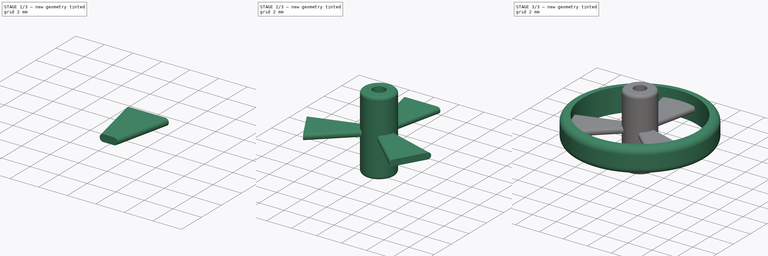
[diagram: build sequence overview — one tinted view per stage of 3, left to right]
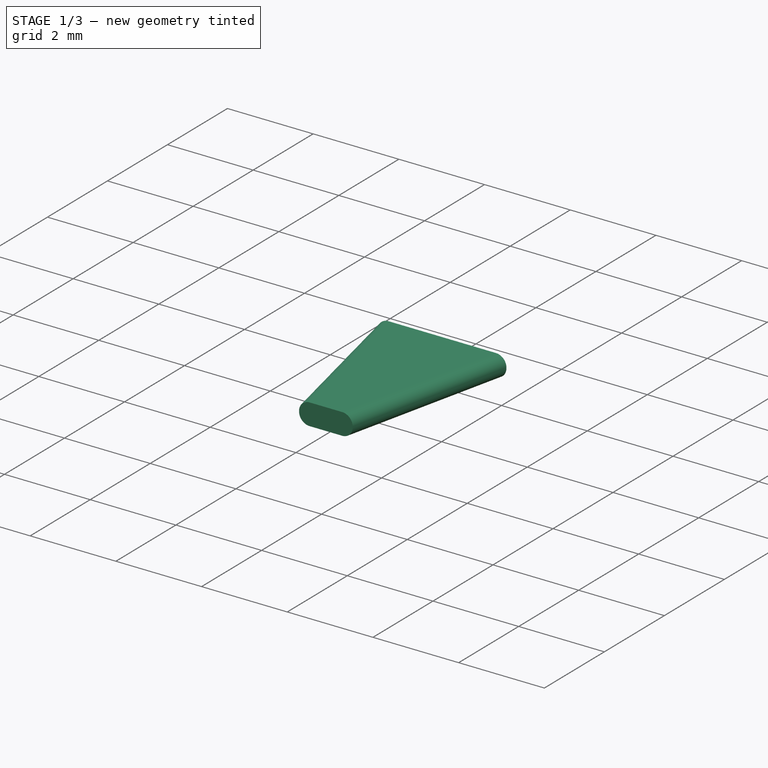
[diagram: stage 1 of 3 — iso view after this stage's code; geometry added in this stage tinted green]
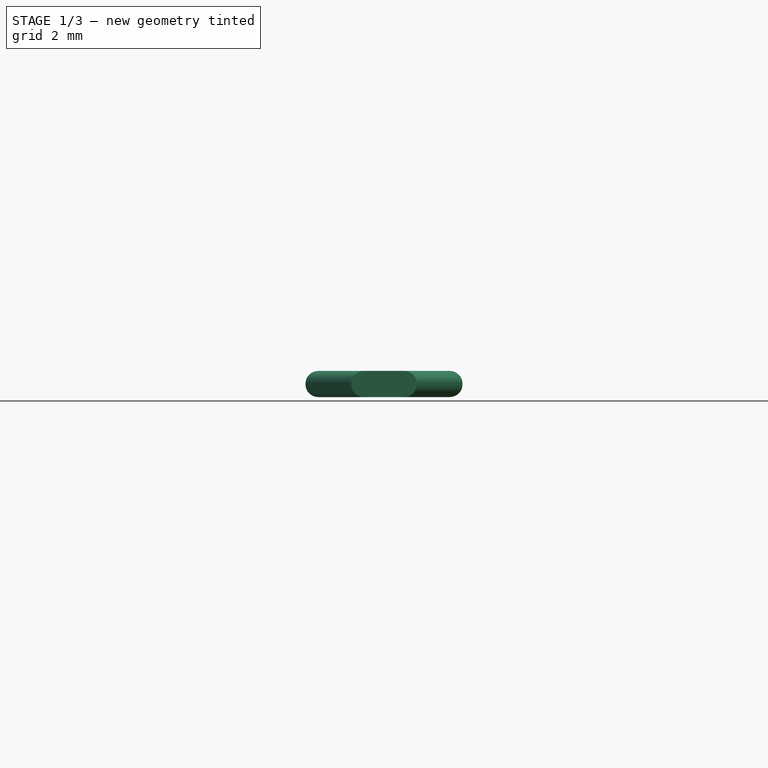
[diagram: stage 1 of 3 — front view after this stage's code; geometry added in this stage tinted green]
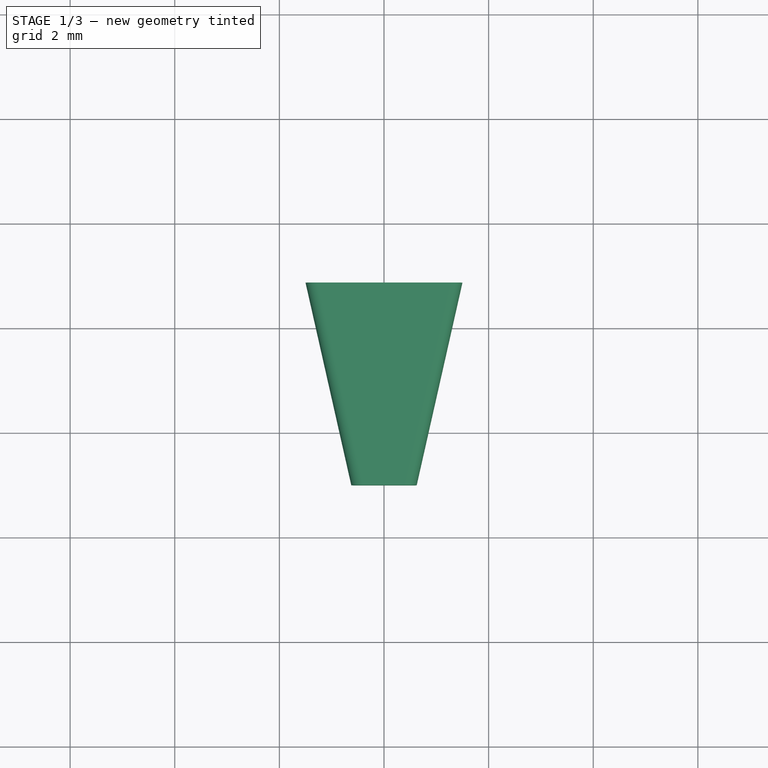
[diagram: stage 1 of 3 — top view after this stage's code; geometry added in this stage tinted green]
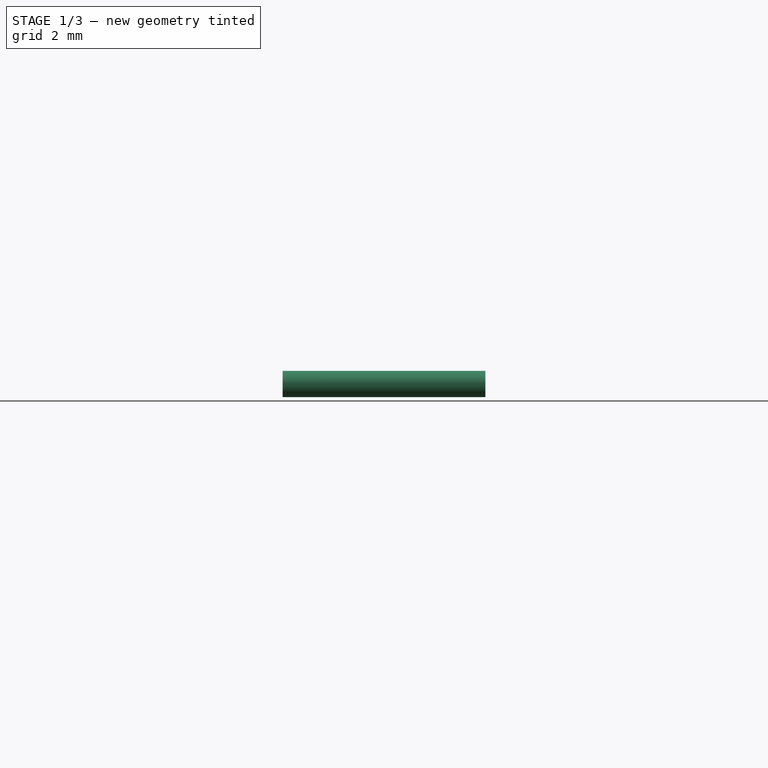
[diagram: stage 1 of 3 — right view after this stage's code; geometry added in this stage tinted green]
FCSTD DOCUMENT  (FreeCAD 0.19R24276 (Git))
Label: Wheel
License: All rights reserved
LicenseURL: http://en.wikipedia.org/wiki/All_rights_reserved
objects: Part::FeaturePython×3, Part::Fillet×2, Spreadsheet::Sheet×1, Sketcher::SketchObject×1, PartDesign::Pad×1, PartDesign::Fillet×1, PartDesign::Body×1
note: 10 computed .brp shape members not serialized (recipe doc carries the construction recipe); baked Part::Feature solids carry a one-line shape summary decoded from their .brp

FEATURE [Sketcher::SketchObject] Sketch
  FullyConstrained = true
  MapMode = 5
  Support = -> [XY_Plane]
  expr: Constraints[9] = (<<data>>.wheel_outter_radius - <<data>>.wheel_inner_radius) / 2 + <<data>>.wheel_inner_radius - 1.25mm
  expr: Constraints[7] = <<data>>.hub_outter_radius - 0.25mm
  sketch-geometry (4):
    g0: LineSegment StartX=1.5 StartY=4.875 StartZ=0 EndX=-1.5 EndY=4.875 EndZ=0
    g1: LineSegment StartX=-1.5 StartY=4.875 StartZ=0 EndX=-0.625 EndY=1 EndZ=0
    g2: LineSegment StartX=-0.625 StartY=1 StartZ=0 EndX=0.625 EndY=1 EndZ=0
    g3: LineSegment StartX=0.625 StartY=1 StartZ=0 EndX=1.5 EndY=4.875 EndZ=0
  constraints (10):
    c: Coincident(g0,g1)
    c: Coincident(g1,g2)
    c: Coincident(g2,g3)
    c: Coincident(g3,g0)
    c: Symmetric(g2,g1,g-2)
    c: DistanceX(g1,g2) = 1.25
    c: DistanceX(g0,g0) = 3
    c: DistanceY(g-1,g2) = 1
    c: Symmetric(g0,g0,g-2)
    c: DistanceY(g2,g0) = 3.875
FEATURE [PartDesign::Pad] Pad
  Direction = (1,1,1)
  Length = 0.5
  Length2 = 100
  Profile = -> Sketch
  Type = 0
  expr: Length = <<data>>.spoke_width
FEATURE [PartDesign::Fillet] Fillet002
  Base = -> Pad [Edge6,Edge7,Edge11,Edge12]
  BaseFeature = -> Pad
  Radius = 0.24
  SupportTransform = false
  expr: Radius = <<data>>.spoke_width / 2 - 0.01mm
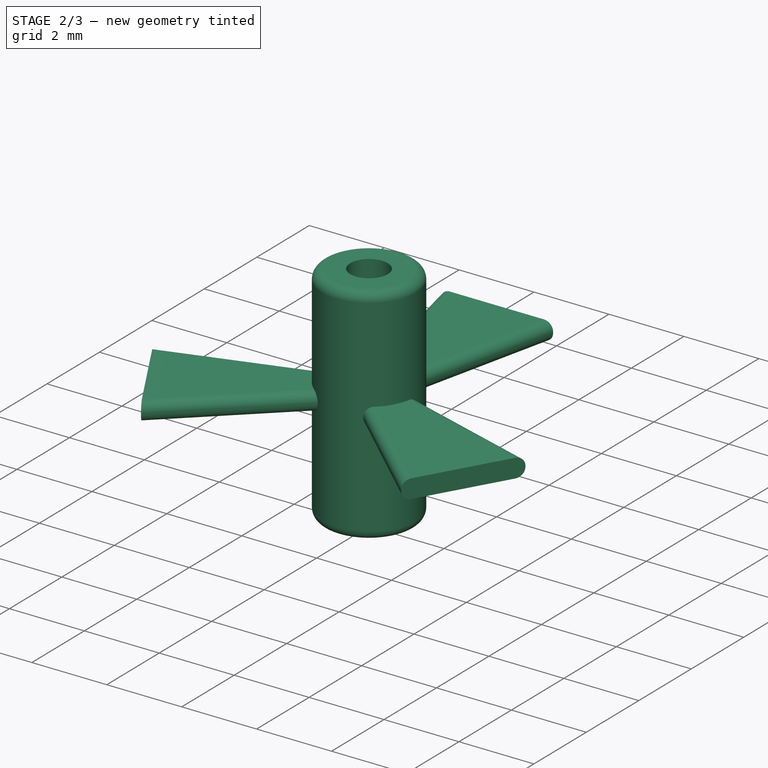
[diagram: stage 2 of 3 — iso view after this stage's code; geometry added in this stage tinted green]
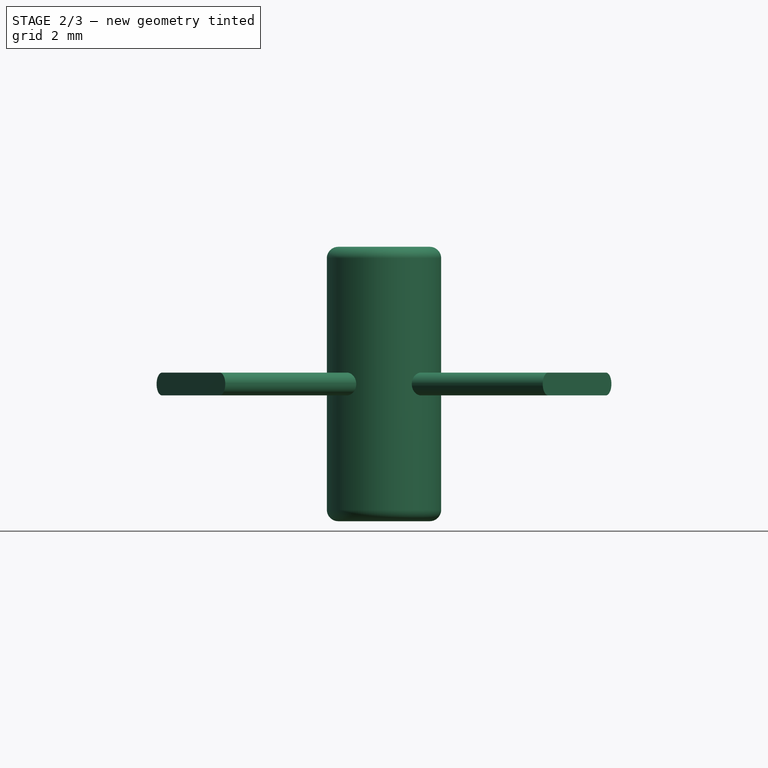
[diagram: stage 2 of 3 — front view after this stage's code; geometry added in this stage tinted green]
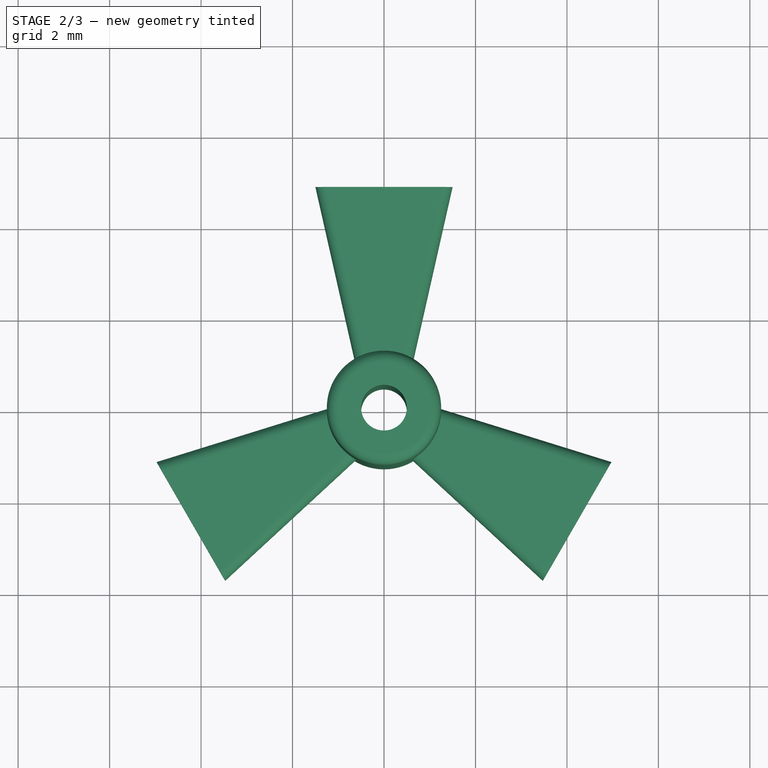
[diagram: stage 2 of 3 — top view after this stage's code; geometry added in this stage tinted green]
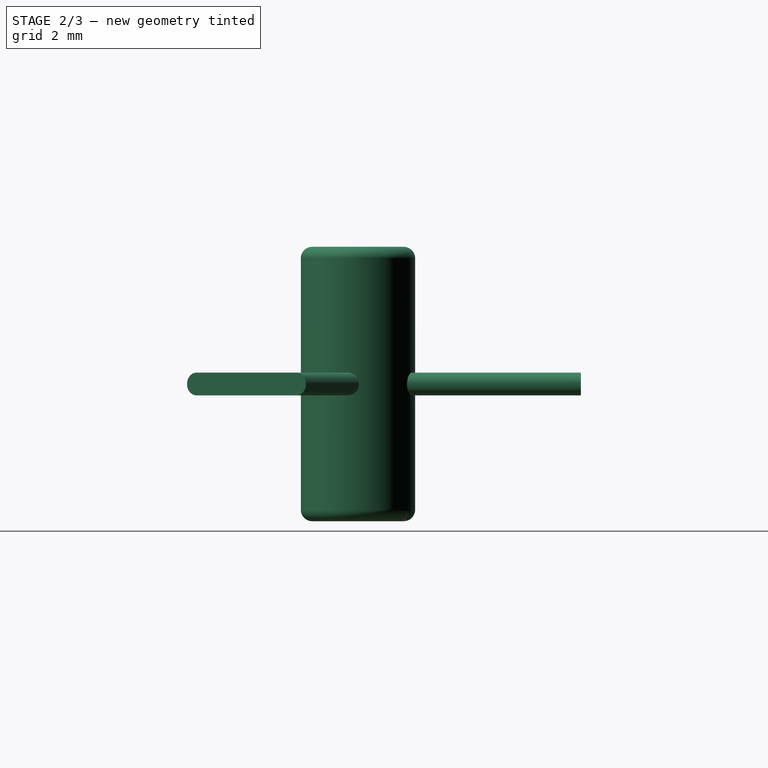
[diagram: stage 2 of 3 — right view after this stage's code; geometry added in this stage tinted green]
FEATURE [Part::FeaturePython] Tube  label="Hub"  # WARN: FeaturePython — macro-defined, semantics opaque (R4)
  AttacherType = Attacher::AttachEngine3D
  Height = 6
  InnerRadius = 0.5
  OuterRadius = 1.25
  expr: InnerRadius = <<data>>.axle_hole_radius
  expr: OuterRadius = <<data>>.hub_outter_radius
  expr: Height = <<data>>.hub_width
FEATURE [Part::Fillet] Fillet001
  Base = -> Tube
  Edges = 2 edges r=0.25: [Edge1,Edge3]
FEATURE [PartDesign::Body] Body
  Group = -> [Sketch,Pad,Fillet002]
  Origin = -> Origin
  Placement = pos=(0,0,2.75) rot=(0,0,1;0rad)
  Tip = -> Fillet002
FEATURE [Part::FeaturePython] Array  # Draft array (typed FeaturePython)
  Angle = 360
  ArrayType = 1
  Axis = (0,0,1)
  Base = -> Fillet002
  Center = (0,0,0)
  Count = 3
  ExpandArray = false
  Fuse = false
  IntervalAxis = (0,0,0)
  IntervalX = (50,0,0)
  IntervalY = (0,50,0)
  IntervalZ = (0,0,50)
  NumberCircles = 3
  NumberPolar = 3
  NumberX = 2
  NumberY = 2
  NumberZ = 1
  Placement = pos=(0,0,2.75) rot=(0,0,1;0rad)
  PlacementList = 3 placements: [(0,0,0),(0,0,0),(0,0,0)]
  RadialDistance = 50
  ScaleList = (3) [(1,1,1),(1,1,1),(1,1,1)]
  Symmetry = 1
  TangentialDistance = 25
  expr: .Placement.Base.z = <<data>>.hub_width / 2 - <<data>>.spoke_width / 2
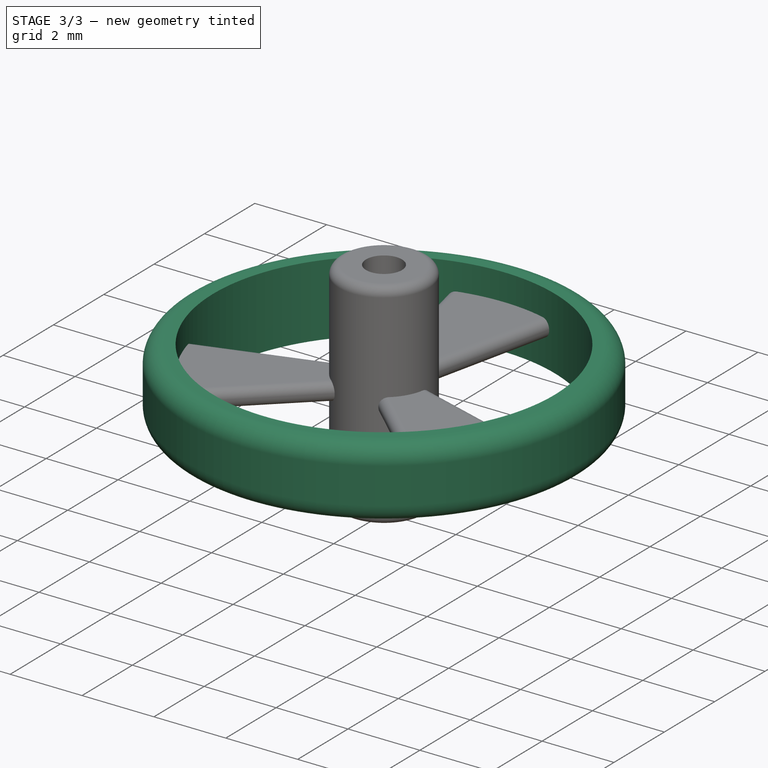
[diagram: stage 3 of 3 — iso view after this stage's code; geometry added in this stage tinted green]
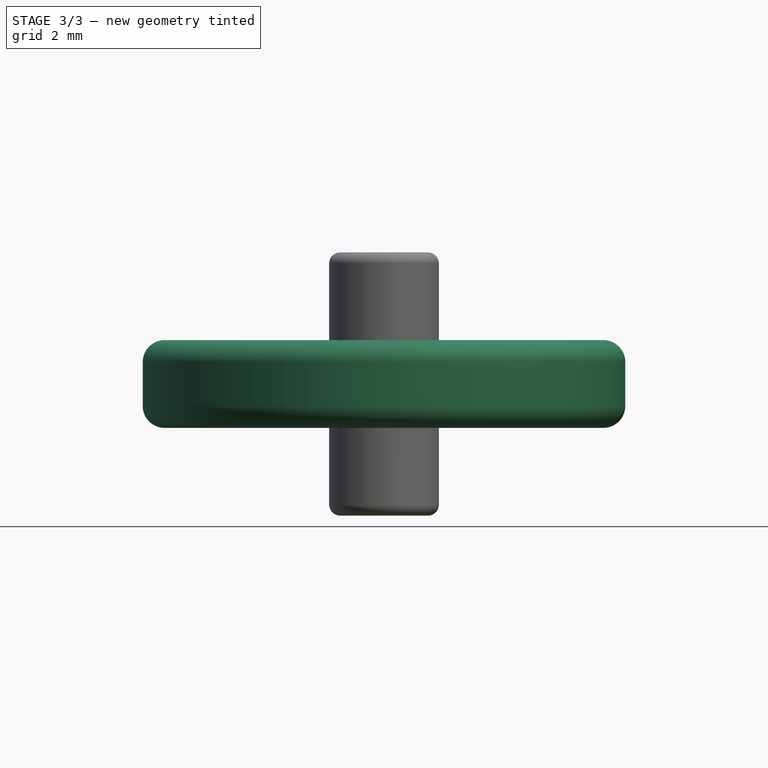
[diagram: stage 3 of 3 — front view after this stage's code; geometry added in this stage tinted green]
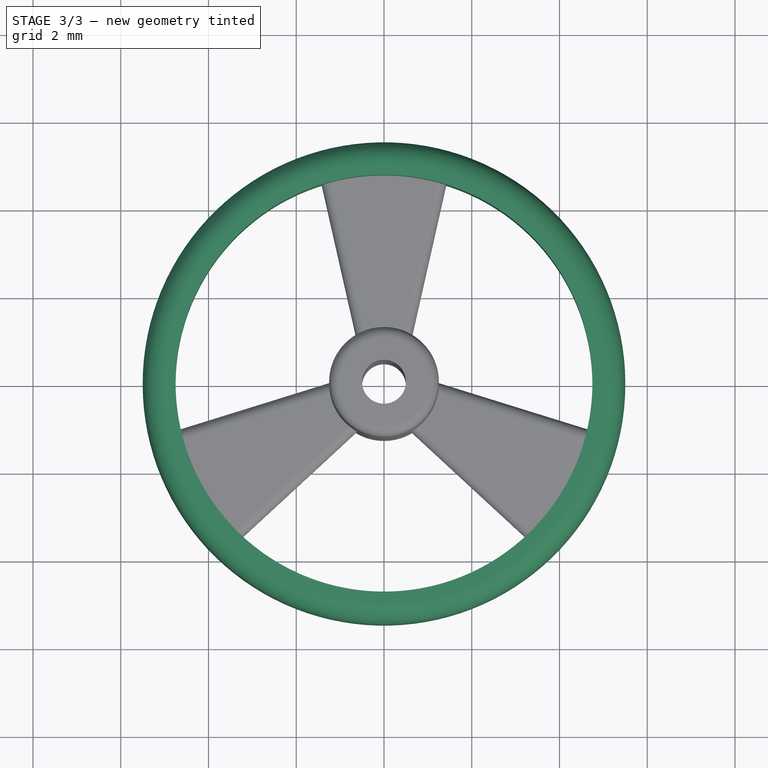
[diagram: stage 3 of 3 — top view after this stage's code; geometry added in this stage tinted green]
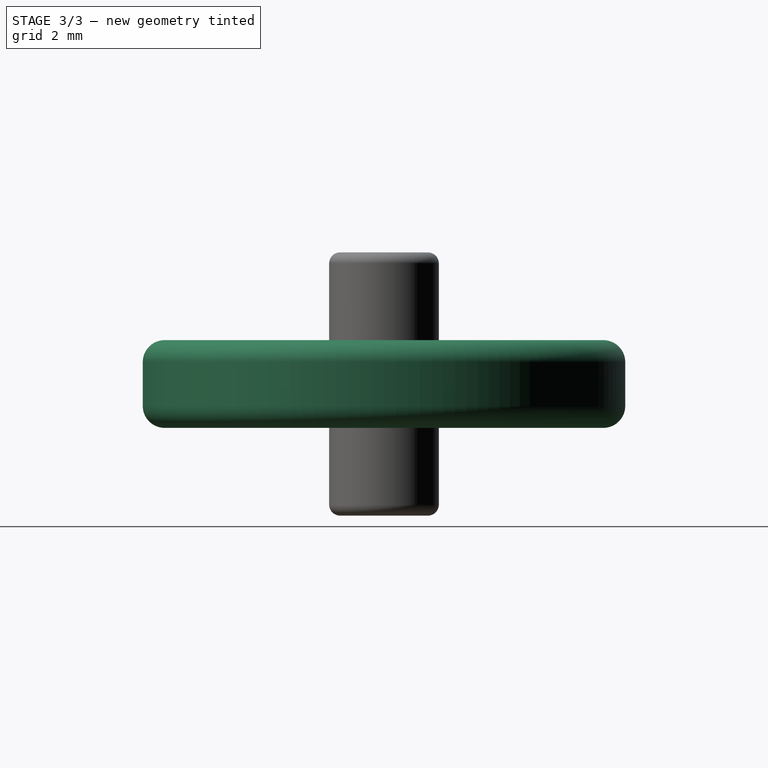
[diagram: stage 3 of 3 — right view after this stage's code; geometry added in this stage tinted green]
FEATURE [Spreadsheet::Sheet] Spreadsheet  label="data"
  cells = A1=axle_hole_radius; B1(axle_hole_radius)==0.5mm; A3=hub_outter_radius; B3(hub_outter_radius)==1.25mm; A5=hub_width; B5(hub_width)==6mm; A7=wheel_outter_radius; B7(wheel_outter_radius)==5.5mm; A8=wheel_inner_radius; B8(wheel_inner_radius)==4.75mm; D8=(wheel_outter_radius - wheel_inner_radius / 2) + wheel_inner_radius; A9=wheel_width; B9(wheel_width)==2mm; A10=spoke_width; B10(spoke_width)==0.5mm
FEATURE [Part::FeaturePython] Tube002  label="Wheel"  # WARN: FeaturePython — macro-defined, semantics opaque (R4)
  AttacherType = Attacher::AttachEngine3D
  Height = 2
  InnerRadius = 4.75
  OuterRadius = 5.5
  Placement = pos=(0,0,2) rot=(0,0,1;0rad)
  expr: Height = <<data>>.wheel_width
  expr: .Placement.Base.z = <<data>>.hub_width / 2 - <<data>>.wheel_width / 2
  expr: InnerRadius = <<data>>.wheel_inner_radius
  expr: OuterRadius = <<data>>.wheel_outter_radius
FEATURE [Part::Fillet] Fillet
  Base = -> Tube002
  Edges = 2 edges r=0.5: [Edge1,Edge3]
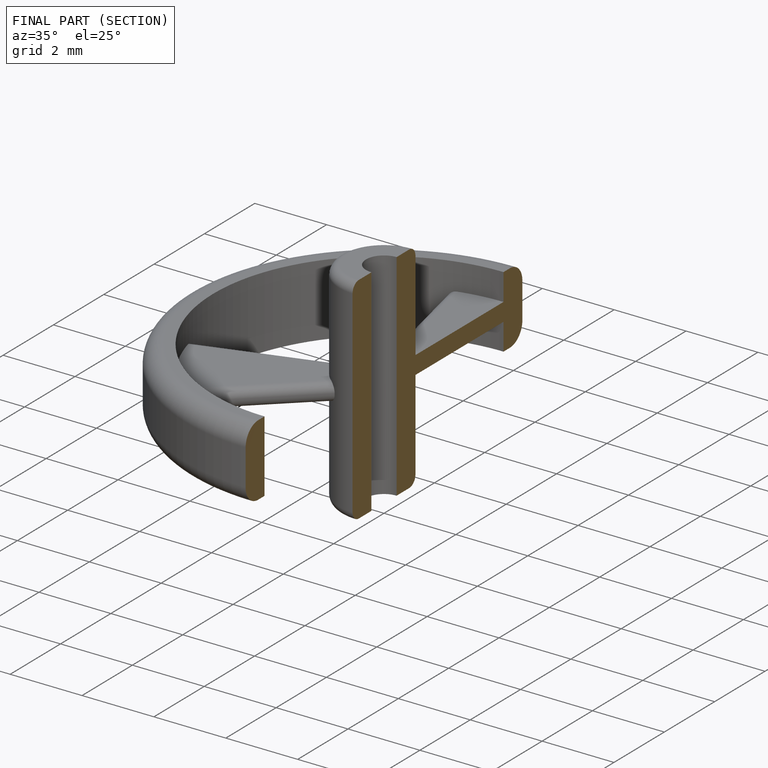
[diagram: finished part — half-section view (interior)]
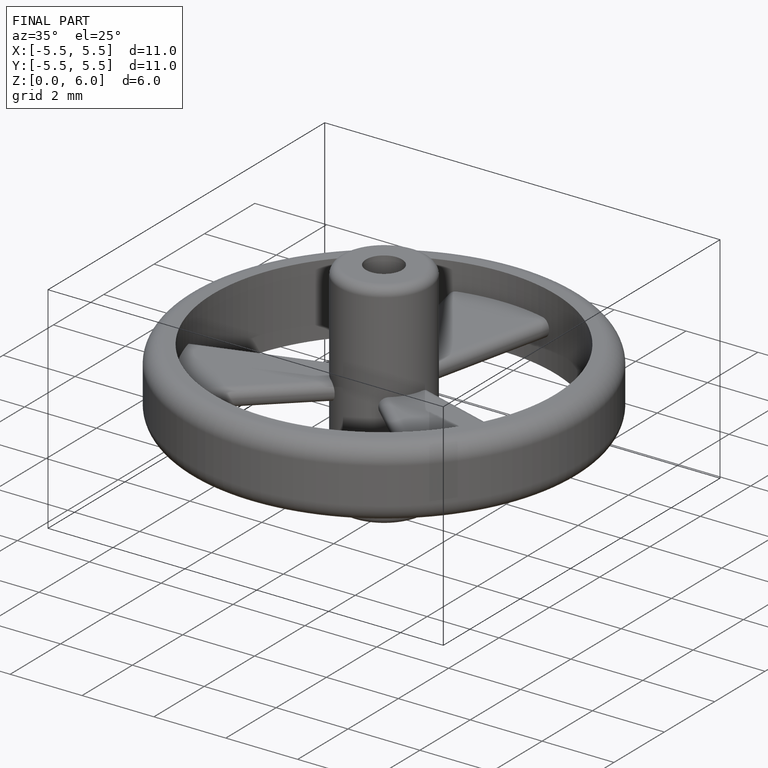
[diagram: finished part — iso view with bounding-box wireframe]
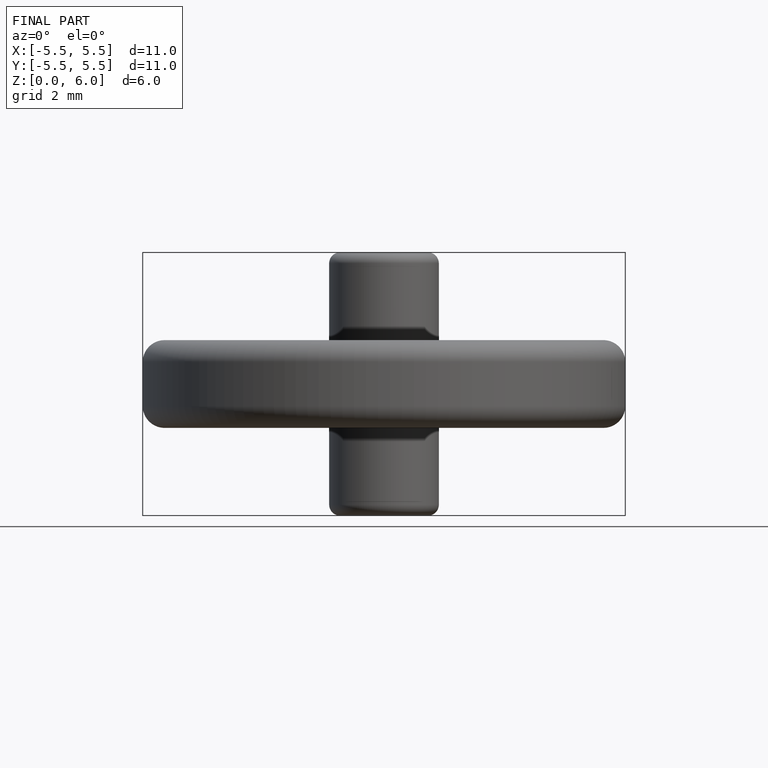
[diagram: finished part — front view with bounding-box wireframe]
